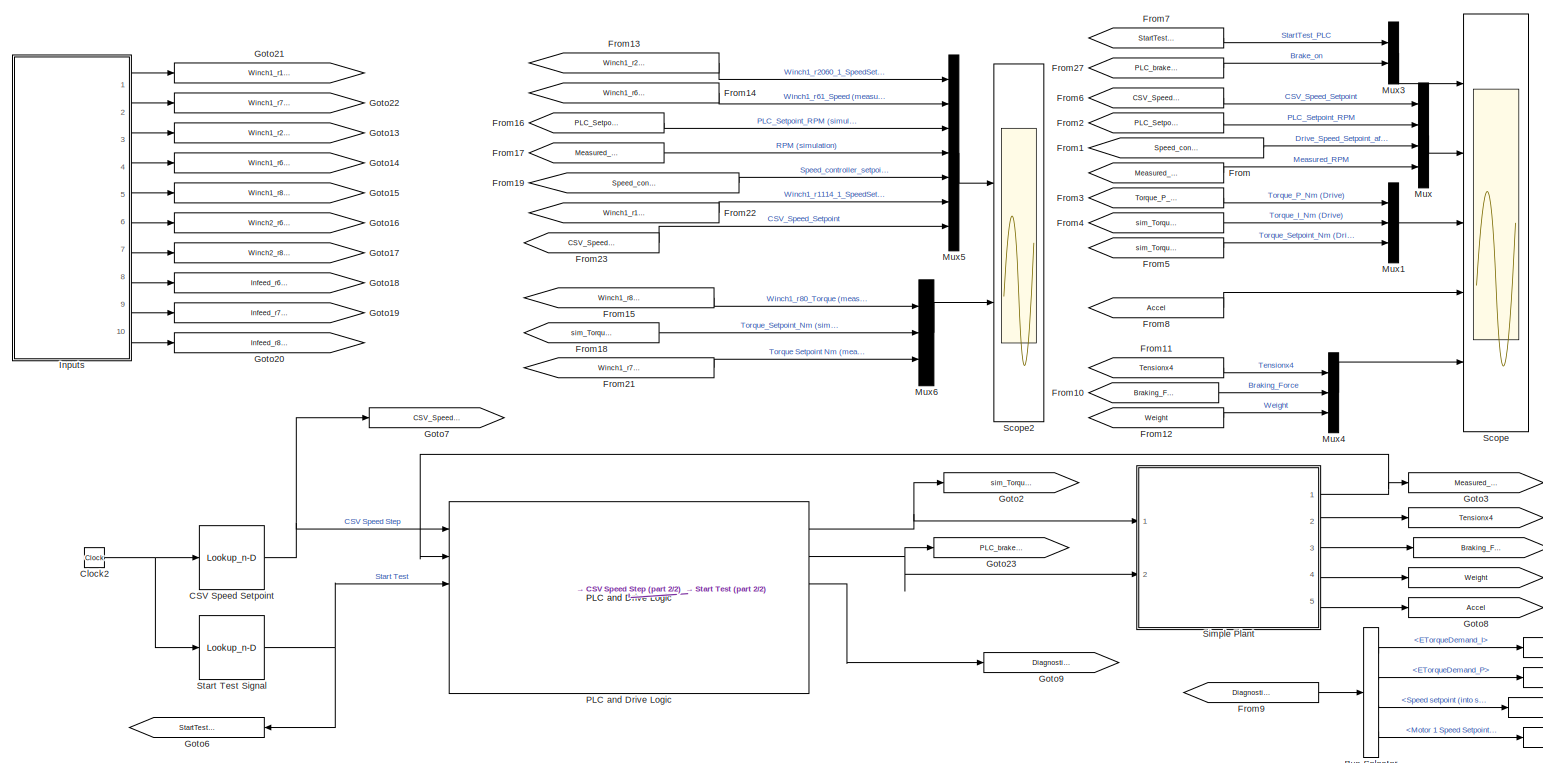
[diagram: root canvas - part 1/2, most of the canvas]
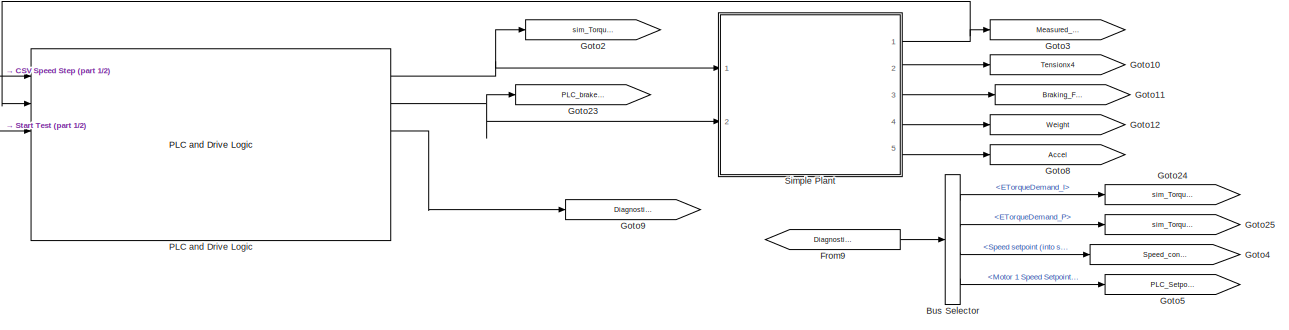
[diagram: root canvas - part 2/2, full width, bottom band]
MODEL slx_44e3af81eabe
KIND model
CONFIG AbsTol = auto
CONFIG EnableMultiTasking = off
CONFIG FixedStep = auto
CONFIG MaxStep = 0.001
CONFIG MinStep = auto
CONFIG RelTol = 1e-3
CONFIG SampleTimeConstraint = Unconstrained
CONFIG SolverName = VariableStepAuto
CONFIG StartTime = 0.0
CONFIG StopTime = Time
BLOCK [BusSelector] Bus Selector
  OutputSignals = ETorqueDemand_I,ETorqueDemand_P,Speed setpoint\n(into speed controller),Motor 1 Speed Setpoint from PLC
  Ports = [1, 4]
BLOCK [Lookup_n-D] CSV Speed Setpoint
  BreakpointsForDimension1 = Speed_lookup_time
  InputPortMap = u0
  InternalRulePriority = Speed
  NumberOfTableDimensions = 1
  Ports = [1, 1]
  RndMeth = Simplest
  Table = Speed_lookup
BLOCK [Clock] Clock2
BLOCK [From] From
  GotoTag = Measured_RPM
BLOCK [From] From1
  GotoTag = Speed_controller_setpoint
BLOCK [From] From10
  GotoTag = Braking_Force
BLOCK [From] From11
  GotoTag = Tensionx4
BLOCK [From] From12
  GotoTag = Weight
BLOCK [From] From13
  GotoTag = Winch1_r2060_1_SpeedSetpoint
BLOCK [From] From14
  GotoTag = Winch1_r61_Speed
BLOCK [From] From15
  GotoTag = Winch1_r80_Torque
BLOCK [From] From16
  GotoTag = PLC_Setpoint_RPM
BLOCK [From] From17
  GotoTag = Measured_RPM
BLOCK [From] From18
  GotoTag = sim_Torque_Setpoint_Nm
BLOCK [From] From19
  GotoTag = Speed_controller_setpoint
BLOCK [From] From2
  GotoTag = PLC_Setpoint_RPM
BLOCK [From] From21
  GotoTag = Winch1_r79_TorqueSetpoint
BLOCK [From] From22
  GotoTag = Winch1_r1114_1_SpeedSetpoint
BLOCK [From] From23
  GotoTag = CSV_Speed_Setpoint
BLOCK [From] From27
  GotoTag = PLC_brake_on_command
BLOCK [From] From3
  GotoTag = Torque_P_Nm
BLOCK [From] From4
  GotoTag = sim_Torque_I_Nm
BLOCK [From] From5
  GotoTag = sim_Torque_Setpoint_Nm
  NameLocation = top
BLOCK [From] From6
  GotoTag = CSV_Speed_Setpoint
BLOCK [From] From7
  GotoTag = StartTest_PLC
BLOCK [From] From8
  GotoTag = Accel
BLOCK [From] From9
  GotoTag = Diagnostics_Bus
BLOCK [Goto] Goto10
  GotoTag = Tensionx4
BLOCK [Goto] Goto11
  GotoTag = Braking_Force
BLOCK [Goto] Goto12
  GotoTag = Weight
BLOCK [Goto] Goto13
  GotoTag = Winch1_r2060_1_SpeedSetpoint
BLOCK [Goto] Goto14
  GotoTag = Winch1_r61_Speed
BLOCK [Goto] Goto15
  GotoTag = Winch1_r80_Torque
BLOCK [Goto] Goto16
  GotoTag = Winch2_r61_Speed
BLOCK [Goto] Goto17
  GotoTag = Winch2_r80_Torque
BLOCK [Goto] Goto18
  GotoTag = Infeed_r68_Infeed_Current
BLOCK [Goto] Goto19
  GotoTag = Infeed_r70_DC_Voltage
BLOCK [Goto] Goto2
  GotoTag = sim_Torque_Setpoint_Nm
BLOCK [Goto] Goto20
  GotoTag = Infeed_r82_Power_kW
BLOCK [Goto] Goto21
  GotoTag = Winch1_r1114_1_SpeedSetpoint
BLOCK [Goto] Goto22
  GotoTag = Winch1_r79_TorqueSetpoint
BLOCK [Goto] Goto23
  GotoTag = PLC_brake_on_command
BLOCK [Goto] Goto24
  GotoTag = sim_Torque_I_Nm
BLOCK [Goto] Goto25
  GotoTag = sim_Torque_P_Nm
BLOCK [Goto] Goto3
  GotoTag = Measured_RPM
BLOCK [Goto] Goto4
  GotoTag = Speed_controller_setpoint
BLOCK [Goto] Goto5
  GotoTag = PLC_Setpoint_RPM
BLOCK [Goto] Goto6
  GotoTag = StartTest_PLC
  NameLocation = top
BLOCK [Goto] Goto7
  GotoTag = CSV_Speed_Setpoint
BLOCK [Goto] Goto8
  GotoTag = Accel
BLOCK [Goto] Goto9
  GotoTag = Diagnostics_Bus
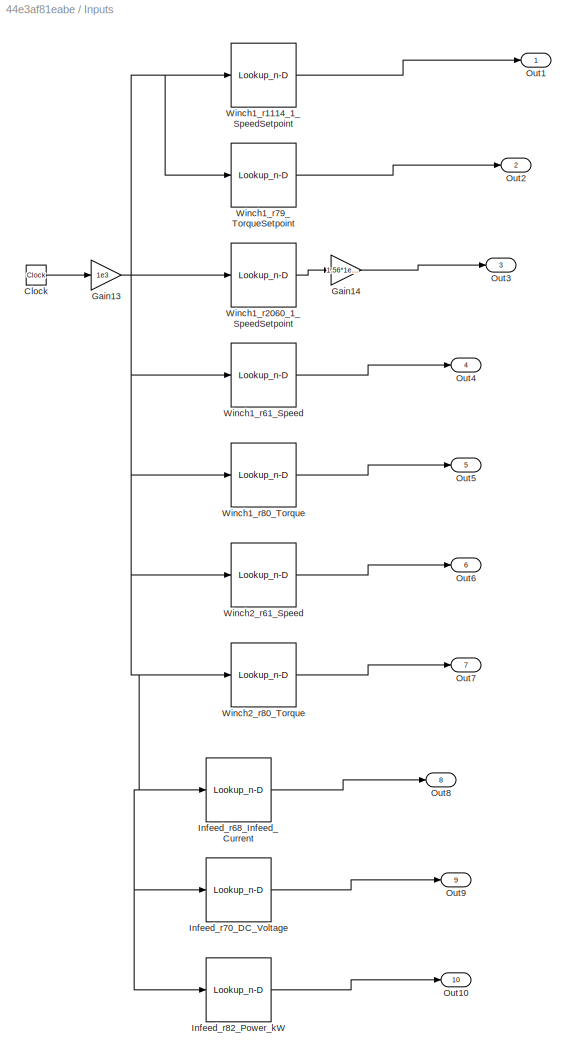
BLOCK [SubSystem] Inputs
  Ports = [0, 10]
  RequestExecContextInheritance = off
BLOCK [Clock] Inputs/Clock
BLOCK [Gain] Inputs/Gain13
  Gain = 1e3
BLOCK [Gain] Inputs/Gain14
  Gain = 1.56*1e-6
BLOCK [Lookup_n-D] Inputs/Infeed_r68_Infeed_Current
  BreakpointsForDimension1 = Time_ms
  InputPortMap = u0
  InternalRulePriority = Speed
  NumberOfTableDimensions = 1
  Ports = [1, 1]
  RndMeth = Simplest
  Table = Infeed_r68_Infeed_Current
BLOCK [Lookup_n-D] Inputs/Infeed_r70_DC_Voltage
  BreakpointsForDimension1 = Time_ms
  InputPortMap = u0
  InternalRulePriority = Speed
  NumberOfTableDimensions = 1
  Ports = [1, 1]
  RndMeth = Simplest
  Table = Infeed_r70_DC_Voltage
BLOCK [Lookup_n-D] Inputs/Infeed_r82_Power_kW
  BreakpointsForDimension1 = Time_ms
  InputPortMap = u0
  InternalRulePriority = Speed
  NumberOfTableDimensions = 1
  Ports = [1, 1]
  RndMeth = Simplest
  Table = Infeed_r82_Power_kW
BLOCK [Outport] Inputs/Out1
BLOCK [Outport] Inputs/Out10
  Port = 10
BLOCK [Outport] Inputs/Out2
  Port = 2
BLOCK [Outport] Inputs/Out3
  Port = 3
BLOCK [Outport] Inputs/Out4
  Port = 4
BLOCK [Outport] Inputs/Out5
  Port = 5
BLOCK [Outport] Inputs/Out6
  Port = 6
BLOCK [Outport] Inputs/Out7
  Port = 7
BLOCK [Outport] Inputs/Out8
  Port = 8
BLOCK [Outport] Inputs/Out9
  Port = 9
BLOCK [Lookup_n-D] Inputs/Winch1_r1114_1_SpeedSetpoint
  BreakpointsForDimension1 = Time_ms
  InputPortMap = u0
  InternalRulePriority = Speed
  NumberOfTableDimensions = 1
  Ports = [1, 1]
  RndMeth = Simplest
  Table = Winch1_r1114_1_SpeedSetpoint
BLOCK [Lookup_n-D] Inputs/Winch1_r2060_1_SpeedSetpoint
  BreakpointsForDimension1 = Time_ms
  InputPortMap = u0
  InternalRulePriority = Speed
  NumberOfTableDimensions = 1
  Ports = [1, 1]
  RndMeth = Simplest
  Table = Winch1_r2060_1_SpeedSetpoint
BLOCK [Lookup_n-D] Inputs/Winch1_r61_Speed
  BreakpointsForDimension1 = Time_ms
  InputPortMap = u0
  InternalRulePriority = Speed
  NumberOfTableDimensions = 1
  Ports = [1, 1]
  RndMeth = Simplest
  Table = Winch1_r61_Speed
BLOCK [Lookup_n-D] Inputs/Winch1_r79_TorqueSetpoint
  BreakpointsForDimension1 = Time_ms
  InputPortMap = u0
  InternalRulePriority = Speed
  NumberOfTableDimensions = 1
  Ports = [1, 1]
  RndMeth = Simplest
  Table = Winch1_r79_TorqueSetpoint
BLOCK [Lookup_n-D] Inputs/Winch1_r80_Torque
  BreakpointsForDimension1 = Time_ms
  InputPortMap = u0
  InternalRulePriority = Speed
  NumberOfTableDimensions = 1
  Ports = [1, 1]
  RndMeth = Simplest
  Table = Winch1_r80_Torque
BLOCK [Lookup_n-D] Inputs/Winch2_r61_Speed
  BreakpointsForDimension1 = Time_ms
  InputPortMap = u0
  InternalRulePriority = Speed
  NumberOfTableDimensions = 1
  Ports = [1, 1]
  RndMeth = Simplest
  Table = Winch2_r61_Speed
BLOCK [Lookup_n-D] Inputs/Winch2_r80_Torque
  BreakpointsForDimension1 = Time_ms
  InputPortMap = u0
  InternalRulePriority = Speed
  NumberOfTableDimensions = 1
  Ports = [1, 1]
  RndMeth = Simplest
  Table = Winch2_r80_Torque
BLOCK [Mux] Mux
  DisplayOption = bar
  Ports = [4, 1]
BLOCK [Mux] Mux1
  DisplayOption = bar
  Inputs = 3
  Ports = [3, 1]
BLOCK [Mux] Mux3
  DisplayOption = bar
  Inputs = 2
  Ports = [2, 1]
BLOCK [Mux] Mux4
  DisplayOption = bar
  Inputs = 3
  Ports = [3, 1]
BLOCK [Mux] Mux5
  DisplayOption = bar
  Inputs = 7
  Ports = [7, 1]
BLOCK [Mux] Mux6
  DisplayOption = bar
  Inputs = 3
  Ports = [3, 1]
BLOCK [Reference] PLC and Drive Logic  REF=Control_Library_Rev1_02Mar21/PLC and Drive Logic
  Ports = [6, 6]
  SourceBlock = Control_Library_Rev1_02Mar21/PLC and Drive Logic
  SourceType = SubSystem
BLOCK [Scope] Scope
  Floating = off
  NumInputPorts = 5
  Ports = [5]
  ScopeSpecificationString = Simulink.scopes.TimeScopeBlockCfg('CurrentConfiguration', extmgr.ConfigurationSet(extmgr.Configuration('Core','General UI',true),extmgr.Configuration('Core','Source UI',true),extmgr.Configuration('Sources','WiredSimulink',true),extmgr.Configuration('Visuals','Time Domain',true,'SerializedDisplays',{struct('MinYLimReal','-0.125','MaxYLimReal','1.125','YLabelReal','','MinYLimMag','0.00000','MaxYLimM...<+4864ch>
BLOCK [Scope] Scope2
  Floating = off
  NumInputPorts = 2
  Ports = [2]
  ScopeSpecificationString = Simulink.scopes.TimeScopeBlockCfg('CurrentConfiguration', extmgr.ConfigurationSet(extmgr.Configuration('Core','General UI',true),extmgr.Configuration('Core','Source UI',true),extmgr.Configuration('Sources','WiredSimulink',true,'DataLoggingVariableName','ScopeData1'),extmgr.Configuration('Visuals','Time Domain',true,'SerializedDisplays',{struct('MinYLimReal','-2083.89888','MaxYLimReal','1596.43147'...<+2270ch>
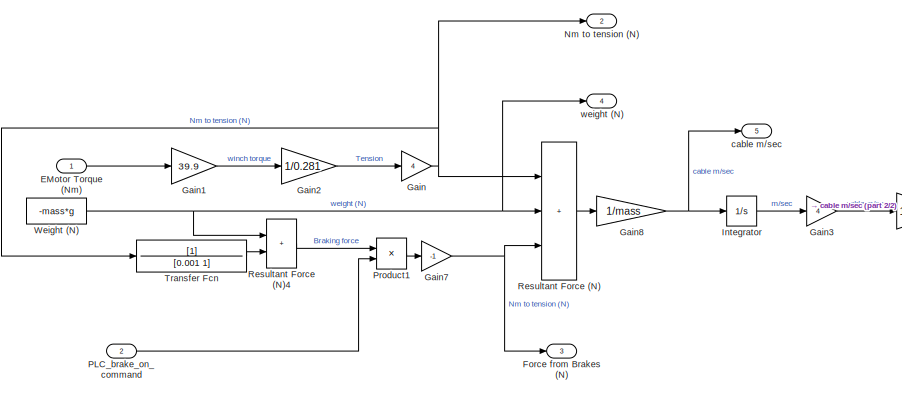
[diagram: Simple Plant - part 1/2, left side, full height]
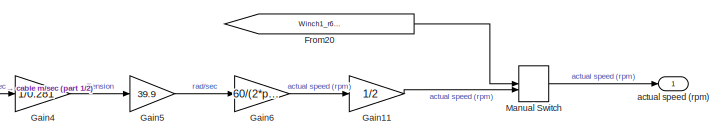
[diagram: Simple Plant - part 2/2, middle right region]
BLOCK [SubSystem] Simple Plant
  Ports = [2, 5]
  RequestExecContextInheritance = off
BLOCK [Inport] Simple Plant/EMotor Torque (Nm)
  NameLocation = top
BLOCK [Outport] Simple Plant/Force from Brakes (N)
  Port = 3
BLOCK [From] Simple Plant/From20
  GotoTag = Winch1_r61_Speed
BLOCK [Gain] Simple Plant/Gain
  Gain = 4
BLOCK [Gain] Simple Plant/Gain1
  Gain = 39.9
BLOCK [Gain] Simple Plant/Gain11
  Gain = 1/2
BLOCK [Gain] Simple Plant/Gain2
  Gain = 1/0.281
BLOCK [Gain] Simple Plant/Gain3
  Gain = 4
BLOCK [Gain] Simple Plant/Gain4
  Gain = 1/0.281
BLOCK [Gain] Simple Plant/Gain5
  Gain = 39.9
BLOCK [Gain] Simple Plant/Gain6
  Gain = 60/(2*pi)
BLOCK [Gain] Simple Plant/Gain7
  Gain = -1
BLOCK [Gain] Simple Plant/Gain8
  Gain = 1/mass
BLOCK [Integrator] Simple Plant/Integrator
  Ports = [1, 1]
BLOCK [ManualSwitch] Simple Plant/Manual Switch
  CurrentSetting = 0
BLOCK [Outport] Simple Plant/Nm to tension (N)
  Port = 2
BLOCK [Inport] Simple Plant/PLC_brake_on_command
  Port = 2
BLOCK [Product] Simple Plant/Product1
  Ports = [2, 1]
BLOCK [Sum] Simple Plant/Resultant Force (N)
  IconShape = rectangular
  Inputs = +++
  Ports = [3, 1]
BLOCK [Sum] Simple Plant/Resultant Force (N)4
  IconShape = rectangular
  Ports = [2, 1]
BLOCK [TransferFcn] Simple Plant/Transfer Fcn
  Denominator = [0.001 1]
BLOCK [Constant] Simple Plant/Weight (N)
  Value = -mass*g
BLOCK [Outport] Simple Plant/actual speed (rpm)
BLOCK [Outport] Simple Plant/cable m//sec
  Port = 5
BLOCK [Outport] Simple Plant/weight (N)
  Port = 4
BLOCK [Lookup_n-D] Start Test Signal
  BreakpointsForDimension1 = Experiment_Start_lookup_time
  InputPortMap = u0
  InternalRulePriority = Speed
  NumberOfTableDimensions = 1
  Ports = [1, 1]
  RndMeth = Simplest
  Table = Experiment_Start_lookup
LINE Bus Selector:1 -> Goto24:1
LINE Bus Selector:2 -> Goto25:1
LINE Bus Selector:3 -> Goto4:1
LINE Bus Selector:4 -> Goto5:1
NET CSV Speed Setpoint:1 -> Goto7:1, PLC and Drive Logic:1
NET Clock2:1 -> CSV Speed Setpoint:1, Start Test Signal:1
LINE From10:1 -> Mux4:2
LINE From11:1 -> Mux4:1
LINE From12:1 -> Mux4:3
LINE From13:1 -> Mux5:1
LINE From14:1 -> Mux5:2
LINE From15:1 -> Mux6:1
LINE From16:1 -> Mux5:3
LINE From17:1 -> Mux5:4
LINE From18:1 -> Mux6:2
LINE From19:1 -> Mux5:5
LINE From1:1 -> Mux:3
LINE From21:1 -> Mux6:3
LINE From22:1 -> Mux5:6
LINE From23:1 -> Mux5:7
LINE From27:1 -> Mux3:2
LINE From2:1 -> Mux:2
LINE From3:1 -> Mux1:1
LINE From4:1 -> Mux1:2
LINE From5:1 -> Mux1:3
LINE From6:1 -> Mux:1
LINE From7:1 -> Mux3:1
LINE From8:1 -> Scope:4
LINE From9:1 -> Bus Selector:1
LINE From:1 -> Mux:4
LINE Inputs/Clock:1 -> Inputs/Gain13:1
NET Inputs/Gain13:1 -> Inputs/Infeed_r68_Infeed_Current:1, Inputs/Infeed_r70_DC_Voltage:1, Inputs/Infeed_r82_Power_kW:1, Inputs/Winch1_r1114_1_SpeedSetpoint:1, Inputs/Winch1_r2060_1_SpeedSetpoint:1, Inputs/Winch1_r61_Speed:1, Inputs/Winch1_r79_TorqueSetpoint:1, Inputs/Winch1_r80_Torque:1, Inputs/Winch2_r61_Speed:1, Inputs/Winch2_r80_Torque:1
LINE Inputs/Gain14:1 -> Inputs/Out3:1
LINE Inputs/Infeed_r68_Infeed_Current:1 -> Inputs/Out8:1
LINE Inputs/Infeed_r70_DC_Voltage:1 -> Inputs/Out9:1
LINE Inputs/Infeed_r82_Power_kW:1 -> Inputs/Out10:1
LINE Inputs/Winch1_r1114_1_SpeedSetpoint:1 -> Inputs/Out1:1
LINE Inputs/Winch1_r2060_1_SpeedSetpoint:1 -> Inputs/Gain14:1
LINE Inputs/Winch1_r61_Speed:1 -> Inputs/Out4:1
LINE Inputs/Winch1_r79_TorqueSetpoint:1 -> Inputs/Out2:1
LINE Inputs/Winch1_r80_Torque:1 -> Inputs/Out5:1
LINE Inputs/Winch2_r61_Speed:1 -> Inputs/Out6:1
LINE Inputs/Winch2_r80_Torque:1 -> Inputs/Out7:1
LINE Inputs:1 -> Goto21:1
LINE Inputs:10 -> Goto20:1
LINE Inputs:2 -> Goto22:1
LINE Inputs:3 -> Goto13:1
LINE Inputs:4 -> Goto14:1
LINE Inputs:5 -> Goto15:1
LINE Inputs:6 -> Goto16:1
LINE Inputs:7 -> Goto17:1
LINE Inputs:8 -> Goto18:1
LINE Inputs:9 -> Goto19:1
LINE Mux1:1 -> Scope:3
LINE Mux3:1 -> Scope:1
LINE Mux4:1 -> Scope:5
LINE Mux5:1 -> Scope2:1
LINE Mux6:1 -> Scope2:2
LINE Mux:1 -> Scope:2
NET PLC and Drive Logic:1 -> Goto2:1, Simple Plant:1
NET PLC and Drive Logic:2 -> Goto23:1, Simple Plant:2
LINE PLC and Drive Logic:3 -> Goto9:1
LINE Simple Plant/EMotor Torque (Nm):1 -> Simple Plant/Gain1:1
LINE Simple Plant/From20:1 -> Simple Plant/Manual Switch:1
LINE Simple Plant/Gain11:1 -> Simple Plant/Manual Switch:2
LINE Simple Plant/Gain1:1 -> Simple Plant/Gain2:1
LINE Simple Plant/Gain2:1 -> Simple Plant/Gain:1
LINE Simple Plant/Gain3:1 -> Simple Plant/Gain4:1
LINE Simple Plant/Gain4:1 -> Simple Plant/Gain5:1
LINE Simple Plant/Gain5:1 -> Simple Plant/Gain6:1
LINE Simple Plant/Gain6:1 -> Simple Plant/Gain11:1
NET Simple Plant/Gain7:1 -> Simple Plant/Force from Brakes (N):1, Simple Plant/Resultant Force (N):3
NET Simple Plant/Gain8:1 -> Simple Plant/Integrator:1, Simple Plant/cable m//sec:1
NET Simple Plant/Gain:1 -> Simple Plant/Nm to tension (N):1, Simple Plant/Resultant Force (N):1, Simple Plant/Transfer Fcn:1
LINE Simple Plant/Integrator:1 -> Simple Plant/Gain3:1
LINE Simple Plant/Manual Switch:1 -> Simple Plant/actual speed (rpm):1
LINE Simple Plant/PLC_brake_on_command:1 -> Simple Plant/Product1:2
LINE Simple Plant/Product1:1 -> Simple Plant/Gain7:1
LINE Simple Plant/Resultant Force (N)4:1 -> Simple Plant/Product1:1
LINE Simple Plant/Resultant Force (N):1 -> Simple Plant/Gain8:1
LINE Simple Plant/Transfer Fcn:1 -> Simple Plant/Resultant Force (N)4:2
NET Simple Plant/Weight (N):1 -> Simple Plant/Resultant Force (N)4:1, Simple Plant/Resultant Force (N):2, Simple Plant/weight (N):1
NET Simple Plant:1 -> Goto3:1, PLC and Drive Logic:2
LINE Simple Plant:2 -> Goto10:1
LINE Simple Plant:3 -> Goto11:1
LINE Simple Plant:4 -> Goto12:1
LINE Simple Plant:5 -> Goto8:1
NET Start Test Signal:1 -> Goto6:1, PLC and Drive Logic:3
note: NET lines group one-source signal fan-out (src -> all destinations, sorted); 1:1 wires keep LINE
